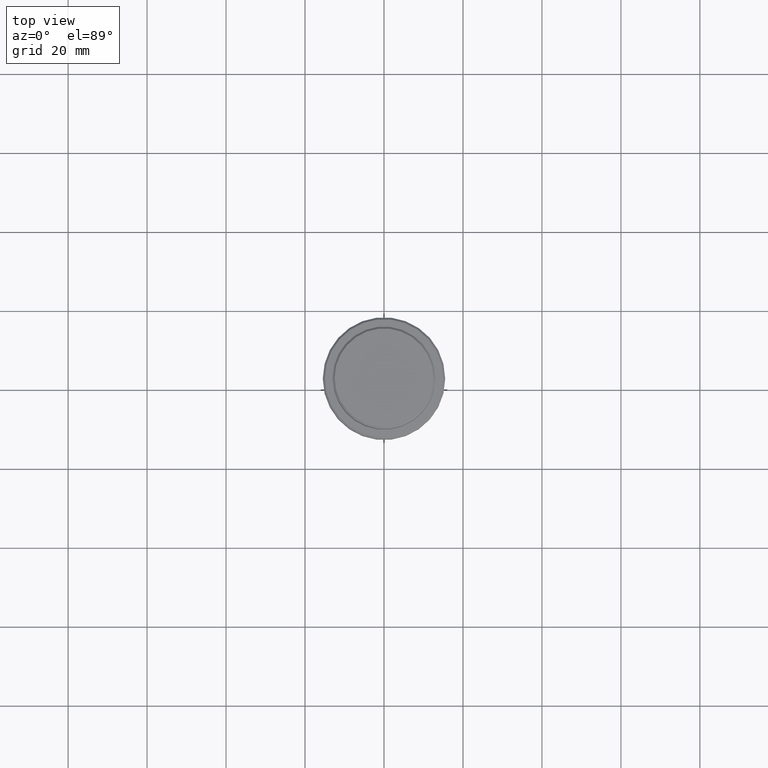
[diagram: clean part render]
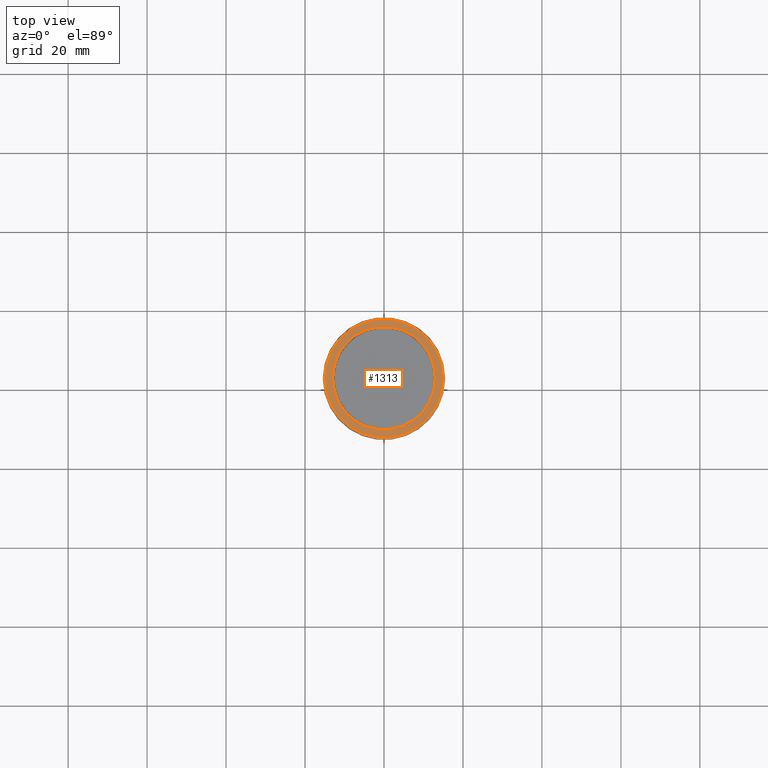
[diagram: same view with one face highlighted and labeled with its STEP entity id]
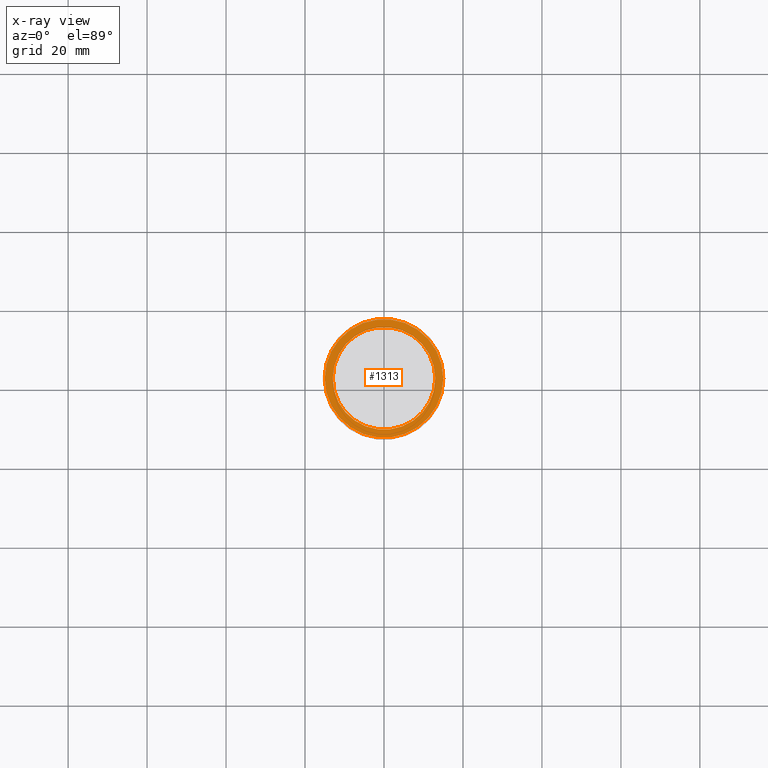
[diagram: x-ray of the same camera — body ghosted, the highlighted face saturated]
A machine part, top view. The second image highlights one B-rep face of the part: STEP entity #1313.
The next image is the same camera in x-ray: the body ghosted, the highlighted face saturated — about 0% of this face is hidden behind the body in this view.
In plain terms, the highlighted planar face has unit normal (0, -0, 1).
Its self-contained STEP definition (entity closure, byte-faithful):
#29 = VERTEX_POINT ( 'NONE', #1244 ) ;
#43 = DIRECTION ( 'NONE',  ( 1.000000000000000000, 0.000000000000000000, 0.000000000000000000 ) ) ;
#47 = ORIENTED_EDGE ( 'NONE', *, *, #336, .T. ) ;
#64 = CARTESIAN_POINT ( 'NONE',  ( 0.000000000000000000, 0.000000000000000000, -9.000000000000000000 ) ) ;
#103 = ORIENTED_EDGE ( 'NONE', *, *, #283, .T. ) ;
#169 = VERTEX_POINT ( 'NONE', #1084 ) ;
#183 = CIRCLE ( 'NONE', #1367, 12.99999999999999467 ) ;
#209 = CIRCLE ( 'NONE', #848, 12.99999999999999467 ) ;
#251 = DIRECTION ( 'NONE',  ( 0.000000000000000000, -0.000000000000000000, 1.000000000000000000 ) ) ;
#267 = CIRCLE ( 'NONE', #1205, 15.00000000000001421 ) ;
#270 = CIRCLE ( 'NONE', #1158, 15.00000000000001421 ) ;
#283 = EDGE_CURVE ( 'NONE', #29, #353, #270, .T. ) ;
#336 = EDGE_CURVE ( 'NONE', #645, #169, #209, .T. ) ;
#353 = VERTEX_POINT ( 'NONE', #1249 ) ;
#439 = DIRECTION ( 'NONE',  ( 0.000000000000000000, 0.000000000000000000, -1.000000000000000000 ) ) ;
#459 = PLANE ( 'NONE',  #1024 ) ;
#483 = DIRECTION ( 'NONE',  ( 0.000000000000000000, 0.000000000000000000, -1.000000000000000000 ) ) ;
#487 = DIRECTION ( 'NONE',  ( 1.000000000000000000, 0.000000000000000000, 0.000000000000000000 ) ) ;
#612 = CARTESIAN_POINT ( 'NONE',  ( 0.000000000000000000, 0.000000000000000000, -9.000000000000000000 ) ) ;
#645 = VERTEX_POINT ( 'NONE', #827 ) ;
#700 = DIRECTION ( 'NONE',  ( 1.000000000000000000, 0.000000000000000000, 0.000000000000000000 ) ) ;
#732 = EDGE_CURVE ( 'NONE', #169, #645, #183, .T. ) ;
#789 = ORIENTED_EDGE ( 'NONE', *, *, #1183, .T. ) ;
#820 = DIRECTION ( 'NONE',  ( -0.000000000000000000, -0.000000000000000000, 1.000000000000000000 ) ) ;
#827 = CARTESIAN_POINT ( 'NONE',  ( -12.99999999999999467, 1.592040838891558504E-15, -9.000000000000000000 ) ) ;
#848 = AXIS2_PLACEMENT_3D ( 'NONE', #912, #483, #700 ) ;
#867 = DIRECTION ( 'NONE',  ( 1.000000000000000000, 0.000000000000000000, 0.000000000000000000 ) ) ;
#872 = EDGE_LOOP ( 'NONE', ( #103, #789 ) ) ;
#912 = CARTESIAN_POINT ( 'NONE',  ( 0.000000000000000000, 0.000000000000000000, -9.000000000000000000 ) ) ;
#986 = FACE_BOUND ( 'NONE', #1107, .T. ) ;
#993 = CARTESIAN_POINT ( 'NONE',  ( 0.000000000000000000, 12.49999999999999289, -9.000000000000000000 ) ) ;
#1024 = AXIS2_PLACEMENT_3D ( 'NONE', #993, #251, #43 ) ;
#1051 = DIRECTION ( 'NONE',  ( -0.000000000000000000, -0.000000000000000000, 1.000000000000000000 ) ) ;
#1084 = CARTESIAN_POINT ( 'NONE',  ( 12.99999999999999467, 0.000000000000000000, -9.000000000000000000 ) ) ;
#1107 = EDGE_LOOP ( 'NONE', ( #1188, #47 ) ) ;
#1158 = AXIS2_PLACEMENT_3D ( 'NONE', #64, #820, #1357 ) ;
#1183 = EDGE_CURVE ( 'NONE', #353, #29, #267, .T. ) ;
#1184 = FACE_OUTER_BOUND ( 'NONE', #872, .T. ) ;
#1188 = ORIENTED_EDGE ( 'NONE', *, *, #732, .T. ) ;
#1194 = CARTESIAN_POINT ( 'NONE',  ( 0.000000000000000000, 0.000000000000000000, -9.000000000000000000 ) ) ;
#1205 = AXIS2_PLACEMENT_3D ( 'NONE', #612, #1051, #487 ) ;
#1244 = CARTESIAN_POINT ( 'NONE',  ( -15.00000000000001421, 0.000000000000000000, -9.000000000000000000 ) ) ;
#1249 = CARTESIAN_POINT ( 'NONE',  ( 15.00000000000001421, 1.867586368699714559E-15, -9.000000000000000000 ) ) ;
#1313 = ADVANCED_FACE ( 'NONE', ( #1184, #986 ), #459, .T. ) ;
#1357 = DIRECTION ( 'NONE',  ( 1.000000000000000000, 0.000000000000000000, 0.000000000000000000 ) ) ;
#1367 = AXIS2_PLACEMENT_3D ( 'NONE', #1194, #439, #867 ) ;